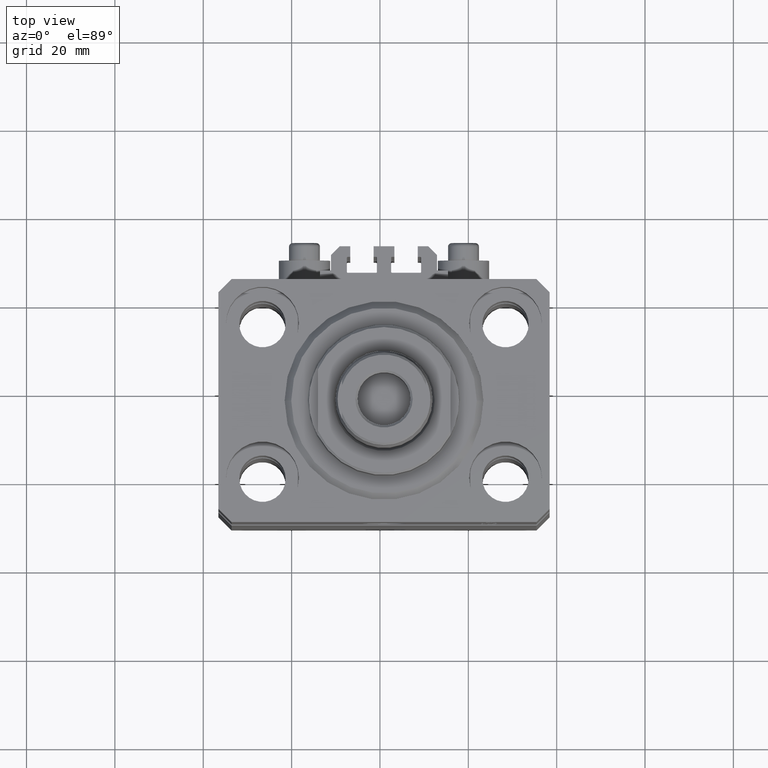
[diagram: clean part render]
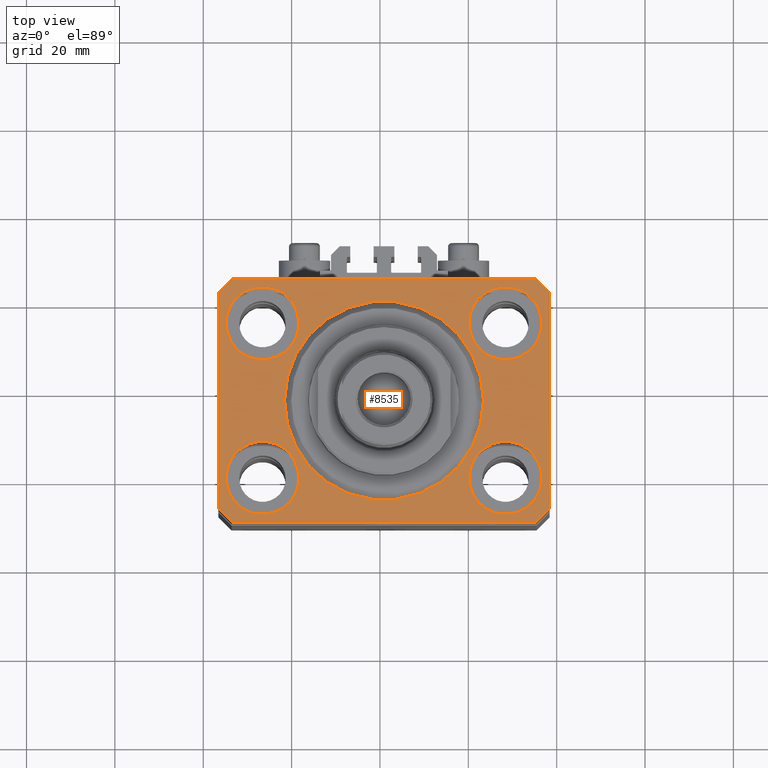
[diagram: same view with one face highlighted and labeled with its STEP entity id]
A machine part, top view. The second image highlights one B-rep face of the part: STEP entity #8535.
In plain terms, the highlighted planar face has unit normal (0, 0, 1).
Its self-contained STEP definition (entity closure, byte-faithful):
#645 = CARTESIAN_POINT ( 'NONE',  ( 27.50000000000000355, -17.50000000000000000, 0.000000000000000000 ) ) ;
#1339 = VECTOR ( 'NONE', #26666, 1000.000000000000000 ) ;
#2105 = CARTESIAN_POINT ( 'NONE',  ( -37.49999999999999289, 24.50000000000000000, 0.000000000000000000 ) ) ;
#2543 = CIRCLE ( 'NONE', #25241, 22.50000000000000355 ) ;
#2663 = DIRECTION ( 'NONE',  ( -0.7071067811865356934, 0.7071067811865594521, 0.000000000000000000 ) ) ;
#2834 = VERTEX_POINT ( 'NONE', #7367 ) ;
#2890 = EDGE_LOOP ( 'NONE', ( #31663, #12258 ) ) ;
#3394 = CARTESIAN_POINT ( 'NONE',  ( 34.50000000000056843, 27.50000000000000000, 0.000000000000000000 ) ) ;
#3532 = AXIS2_PLACEMENT_3D ( 'NONE', #31490, #13016, #17038 ) ;
#3968 = DIRECTION ( 'NONE',  ( 0.000000000000000000, 0.000000000000000000, 1.000000000000000000 ) ) ;
#4476 = FACE_BOUND ( 'NONE', #32569, .T. ) ;
#4528 = DIRECTION ( 'NONE',  ( 1.000000000000000000, 0.000000000000000000, 0.000000000000000000 ) ) ;
#4838 = LINE ( 'NONE', #33971, #34593 ) ;
#4928 = AXIS2_PLACEMENT_3D ( 'NONE', #9342, #30891, #42220 ) ;
#5567 = VECTOR ( 'NONE', #44948, 1000.000000000000000 ) ;
#5741 = CARTESIAN_POINT ( 'NONE',  ( -22.50000000000000355, 2.755455298081545172E-15, 0.000000000000000000 ) ) ;
#5803 = VECTOR ( 'NONE', #27710, 1000.000000000000000 ) ;
#6016 = CARTESIAN_POINT ( 'NONE',  ( 27.50000000000000355, -17.50000000000000000, 0.000000000000000000 ) ) ;
#6376 = ORIENTED_EDGE ( 'NONE', *, *, #39005, .F. ) ;
#6401 = LINE ( 'NONE', #28200, #7277 ) ;
#6676 = AXIS2_PLACEMENT_3D ( 'NONE', #32971, #22557, #25654 ) ;
#7277 = VECTOR ( 'NONE', #17519, 1000.000000000000000 ) ;
#7367 = CARTESIAN_POINT ( 'NONE',  ( 37.50000000000051870, 24.49999999999995381, 0.000000000000000000 ) ) ;
#7586 = ORIENTED_EDGE ( 'NONE', *, *, #41017, .T. ) ;
#7593 = VERTEX_POINT ( 'NONE', #25806 ) ;
#8033 = DIRECTION ( 'NONE',  ( 0.000000000000000000, 0.000000000000000000, 1.000000000000000000 ) ) ;
#8268 = VERTEX_POINT ( 'NONE', #16833 ) ;
#8368 = CARTESIAN_POINT ( 'NONE',  ( 19.25000000000000000, 17.50000000000001066, 0.000000000000000000 ) ) ;
#8535 = ADVANCED_FACE ( 'NONE', ( #22952, #12280, #4476, #16072, #26511, #40459 ), #26047, .T. ) ;
#8805 = CIRCLE ( 'NONE', #3532, 8.250000000000000000 ) ;
#8994 = CARTESIAN_POINT ( 'NONE',  ( 37.49999999999999289, -24.50000000000000000, 0.000000000000000000 ) ) ;
#9342 = CARTESIAN_POINT ( 'NONE',  ( -27.50000000000000355, -17.50000000000000000, 0.000000000000000000 ) ) ;
#9685 = ORIENTED_EDGE ( 'NONE', *, *, #23191, .T. ) ;
#10780 = ORIENTED_EDGE ( 'NONE', *, *, #20678, .T. ) ;
#10802 = CARTESIAN_POINT ( 'NONE',  ( 34.49999999999999289, -27.49999999999999645, 0.000000000000000000 ) ) ;
#11431 = CARTESIAN_POINT ( 'NONE',  ( -37.49999999999999289, -24.50000000000000000, 0.000000000000000000 ) ) ;
#11759 = AXIS2_PLACEMENT_3D ( 'NONE', #6016, #24729, #38457 ) ;
#12165 = EDGE_CURVE ( 'NONE', #30287, #31883, #35102, .T. ) ;
#12200 = CARTESIAN_POINT ( 'NONE',  ( -34.49999999999998579, -27.49999999999999645, 0.000000000000000000 ) ) ;
#12258 = ORIENTED_EDGE ( 'NONE', *, *, #44285, .F. ) ;
#12280 = FACE_BOUND ( 'NONE', #2890, .T. ) ;
#12681 = LINE ( 'NONE', #12200, #1339 ) ;
#12688 = AXIS2_PLACEMENT_3D ( 'NONE', #29886, #26106, #4528 ) ;
#12951 = VERTEX_POINT ( 'NONE', #8368 ) ;
#13016 = DIRECTION ( 'NONE',  ( 0.000000000000000000, 0.000000000000000000, 1.000000000000000000 ) ) ;
#13244 = EDGE_CURVE ( 'NONE', #44962, #31657, #6401, .T. ) ;
#13847 = ORIENTED_EDGE ( 'NONE', *, *, #13244, .T. ) ;
#14443 = AXIS2_PLACEMENT_3D ( 'NONE', #15707, #26383, #29935 ) ;
#14683 = EDGE_CURVE ( 'NONE', #42990, #34375, #26902, .T. ) ;
#14898 = CARTESIAN_POINT ( 'NONE',  ( -19.25000000000000355, 17.50000000000000000, 0.000000000000000000 ) ) ;
#15473 = ORIENTED_EDGE ( 'NONE', *, *, #43793, .F. ) ;
#15571 = ORIENTED_EDGE ( 'NONE', *, *, #23085, .F. ) ;
#15618 = ORIENTED_EDGE ( 'NONE', *, *, #42400, .F. ) ;
#15670 = ORIENTED_EDGE ( 'NONE', *, *, #39600, .T. ) ;
#15707 = CARTESIAN_POINT ( 'NONE',  ( 27.49999999999999645, 17.50000000000001066, 0.000000000000000000 ) ) ;
#15870 = VERTEX_POINT ( 'NONE', #5741 ) ;
#16072 = FACE_BOUND ( 'NONE', #39821, .T. ) ;
#16215 = DIRECTION ( 'NONE',  ( 0.7071067811865483499, -0.7071067811865466846, 0.000000000000000000 ) ) ;
#16833 = CARTESIAN_POINT ( 'NONE',  ( -37.49999999999999289, 24.50000000000000000, 0.000000000000000000 ) ) ;
#16872 = CARTESIAN_POINT ( 'NONE',  ( 0.000000000000000000, 0.000000000000000000, 0.000000000000000000 ) ) ;
#16921 = DIRECTION ( 'NONE',  ( -0.7071067811865471286, -0.7071067811865479058, 0.000000000000000000 ) ) ;
#17038 = DIRECTION ( 'NONE',  ( 1.000000000000000000, 0.000000000000000000, 0.000000000000000000 ) ) ;
#17519 = DIRECTION ( 'NONE',  ( -1.000000000000000000, 0.000000000000000000, 0.000000000000000000 ) ) ;
#18243 = ORIENTED_EDGE ( 'NONE', *, *, #28902, .T. ) ;
#18599 = CARTESIAN_POINT ( 'NONE',  ( 22.50000000000000355, 0.000000000000000000, 0.000000000000000000 ) ) ;
#20119 = CARTESIAN_POINT ( 'NONE',  ( 37.49999999999999289, -24.50000000000000000, 0.000000000000000000 ) ) ;
#20678 = EDGE_CURVE ( 'NONE', #32918, #30287, #12681, .T. ) ;
#21252 = VECTOR ( 'NONE', #2663, 1000.000000000000114 ) ;
#21551 = VERTEX_POINT ( 'NONE', #14898 ) ;
#21572 = ORIENTED_EDGE ( 'NONE', *, *, #12165, .T. ) ;
#21666 = ORIENTED_EDGE ( 'NONE', *, *, #14683, .F. ) ;
#22415 = CARTESIAN_POINT ( 'NONE',  ( -19.25000000000000355, -17.50000000000000000, 0.000000000000000000 ) ) ;
#22490 = CARTESIAN_POINT ( 'NONE',  ( -35.75000000000000711, -17.50000000000000000, 0.000000000000000000 ) ) ;
#22557 = DIRECTION ( 'NONE',  ( 0.000000000000000000, 0.000000000000000000, 1.000000000000000000 ) ) ;
#22952 = FACE_BOUND ( 'NONE', #30431, .T. ) ;
#23034 = DIRECTION ( 'NONE',  ( 1.000000000000000000, 0.000000000000000000, 0.000000000000000000 ) ) ;
#23085 = EDGE_CURVE ( 'NONE', #12951, #7593, #34867, .T. ) ;
#23191 = EDGE_CURVE ( 'NONE', #2834, #44962, #38202, .T. ) ;
#23277 = EDGE_LOOP ( 'NONE', ( #13847, #7586, #18243, #36669, #10780, #21572, #15670, #9685 ) ) ;
#24729 = DIRECTION ( 'NONE',  ( 0.000000000000000000, 0.000000000000000000, 1.000000000000000000 ) ) ;
#25138 = CARTESIAN_POINT ( 'NONE',  ( -34.49999999999998579, -27.49999999999999645, 0.000000000000000000 ) ) ;
#25241 = AXIS2_PLACEMENT_3D ( 'NONE', #40772, #44549, #23034 ) ;
#25520 = CIRCLE ( 'NONE', #37596, 8.250000000000000000 ) ;
#25654 = DIRECTION ( 'NONE',  ( 1.000000000000000000, 0.000000000000000000, 0.000000000000000000 ) ) ;
#25806 = CARTESIAN_POINT ( 'NONE',  ( 35.74999999999999289, 17.50000000000001066, 0.000000000000000000 ) ) ;
#25962 = EDGE_CURVE ( 'NONE', #21551, #46476, #29676, .T. ) ;
#26047 = PLANE ( 'NONE',  #27564 ) ;
#26106 = DIRECTION ( 'NONE',  ( 0.000000000000000000, 0.000000000000000000, 1.000000000000000000 ) ) ;
#26249 = CARTESIAN_POINT ( 'NONE',  ( -35.75000000000000711, 17.50000000000000000, 0.000000000000000000 ) ) ;
#26383 = DIRECTION ( 'NONE',  ( 0.000000000000000000, 0.000000000000000000, 1.000000000000000000 ) ) ;
#26511 = FACE_BOUND ( 'NONE', #32285, .T. ) ;
#26666 = DIRECTION ( 'NONE',  ( 1.000000000000000000, 0.000000000000000000, 0.000000000000000000 ) ) ;
#26902 = CIRCLE ( 'NONE', #4928, 8.250000000000000000 ) ;
#26930 = VECTOR ( 'NONE', #46674, 1000.000000000000114 ) ;
#27564 = AXIS2_PLACEMENT_3D ( 'NONE', #40927, #8033, #43996 ) ;
#27664 = CARTESIAN_POINT ( 'NONE',  ( -27.50000000000000355, 17.50000000000000000, 0.000000000000000000 ) ) ;
#27710 = DIRECTION ( 'NONE',  ( 1.076236605503979380E-14, 1.000000000000000000, 0.000000000000000000 ) ) ;
#28065 = LINE ( 'NONE', #46241, #33764 ) ;
#28200 = CARTESIAN_POINT ( 'NONE',  ( 34.50000000000056843, 27.50000000000000000, 0.000000000000000000 ) ) ;
#28598 = CIRCLE ( 'NONE', #12688, 8.249999999999992895 ) ;
#28902 = EDGE_CURVE ( 'NONE', #8268, #44979, #31000, .T. ) ;
#29676 = CIRCLE ( 'NONE', #43233, 8.250000000000000000 ) ;
#29886 = CARTESIAN_POINT ( 'NONE',  ( 27.49999999999999645, 17.50000000000001066, 0.000000000000000000 ) ) ;
#29935 = DIRECTION ( 'NONE',  ( 1.000000000000000000, 0.000000000000000000, 0.000000000000000000 ) ) ;
#29940 = CIRCLE ( 'NONE', #11759, 8.250000000000000000 ) ;
#30287 = VERTEX_POINT ( 'NONE', #10802 ) ;
#30431 = EDGE_LOOP ( 'NONE', ( #15473, #21666 ) ) ;
#30891 = DIRECTION ( 'NONE',  ( 0.000000000000000000, 0.000000000000000000, 1.000000000000000000 ) ) ;
#31000 = LINE ( 'NONE', #2105, #5567 ) ;
#31490 = CARTESIAN_POINT ( 'NONE',  ( -27.50000000000000355, 17.50000000000000000, 0.000000000000000000 ) ) ;
#31657 = VERTEX_POINT ( 'NONE', #41751 ) ;
#31663 = ORIENTED_EDGE ( 'NONE', *, *, #37392, .F. ) ;
#31883 = VERTEX_POINT ( 'NONE', #8994 ) ;
#32254 = CARTESIAN_POINT ( 'NONE',  ( 34.49999999999999289, -27.49999999999999645, 0.000000000000000000 ) ) ;
#32285 = EDGE_LOOP ( 'NONE', ( #15618, #38310 ) ) ;
#32368 = AXIS2_PLACEMENT_3D ( 'NONE', #16872, #38654, #42650 ) ;
#32569 = EDGE_LOOP ( 'NONE', ( #46389, #15571 ) ) ;
#32714 = EDGE_CURVE ( 'NONE', #15870, #40135, #2543, .T. ) ;
#32862 = DIRECTION ( 'NONE',  ( 1.000000000000000000, 0.000000000000000000, 0.000000000000000000 ) ) ;
#32918 = VERTEX_POINT ( 'NONE', #25138 ) ;
#32971 = CARTESIAN_POINT ( 'NONE',  ( -27.50000000000000355, -17.50000000000000000, 0.000000000000000000 ) ) ;
#33764 = VECTOR ( 'NONE', #16921, 1000.000000000000000 ) ;
#33780 = CARTESIAN_POINT ( 'NONE',  ( 19.25000000000000000, -17.50000000000000000, 0.000000000000000000 ) ) ;
#33971 = CARTESIAN_POINT ( 'NONE',  ( -37.49999999999999289, -24.50000000000000000, 0.000000000000000000 ) ) ;
#34375 = VERTEX_POINT ( 'NONE', #22415 ) ;
#34382 = CARTESIAN_POINT ( 'NONE',  ( 35.75000000000000711, -17.50000000000000000, 0.000000000000000000 ) ) ;
#34593 = VECTOR ( 'NONE', #16215, 1000.000000000000000 ) ;
#34867 = CIRCLE ( 'NONE', #14443, 8.249999999999992895 ) ;
#35102 = LINE ( 'NONE', #32254, #26930 ) ;
#35106 = CARTESIAN_POINT ( 'NONE',  ( 37.50000000000051870, 24.49999999999995381, 0.000000000000000000 ) ) ;
#36669 = ORIENTED_EDGE ( 'NONE', *, *, #44799, .T. ) ;
#36698 = ORIENTED_EDGE ( 'NONE', *, *, #25962, .F. ) ;
#36910 = CIRCLE ( 'NONE', #6676, 8.250000000000000000 ) ;
#37392 = EDGE_CURVE ( 'NONE', #37638, #44452, #29940, .T. ) ;
#37596 = AXIS2_PLACEMENT_3D ( 'NONE', #645, #3968, #32862 ) ;
#37638 = VERTEX_POINT ( 'NONE', #34382 ) ;
#38202 = LINE ( 'NONE', #35106, #21252 ) ;
#38310 = ORIENTED_EDGE ( 'NONE', *, *, #32714, .F. ) ;
#38457 = DIRECTION ( 'NONE',  ( 1.000000000000000000, 0.000000000000000000, 0.000000000000000000 ) ) ;
#38654 = DIRECTION ( 'NONE',  ( 0.000000000000000000, 0.000000000000000000, 1.000000000000000000 ) ) ;
#38752 = DIRECTION ( 'NONE',  ( 1.000000000000000000, 0.000000000000000000, 0.000000000000000000 ) ) ;
#39005 = EDGE_CURVE ( 'NONE', #46476, #21551, #8805, .T. ) ;
#39600 = EDGE_CURVE ( 'NONE', #31883, #2834, #45421, .T. ) ;
#39821 = EDGE_LOOP ( 'NONE', ( #36698, #6376 ) ) ;
#40135 = VERTEX_POINT ( 'NONE', #18599 ) ;
#40459 = FACE_OUTER_BOUND ( 'NONE', #23277, .T. ) ;
#40772 = CARTESIAN_POINT ( 'NONE',  ( 0.000000000000000000, 0.000000000000000000, 0.000000000000000000 ) ) ;
#40927 = CARTESIAN_POINT ( 'NONE',  ( 0.000000000000000000, 0.000000000000000000, 0.000000000000000000 ) ) ;
#41017 = EDGE_CURVE ( 'NONE', #31657, #8268, #28065, .T. ) ;
#41751 = CARTESIAN_POINT ( 'NONE',  ( -34.49999999999999289, 27.50000000000000000, 0.000000000000000000 ) ) ;
#42058 = DIRECTION ( 'NONE',  ( 0.000000000000000000, 0.000000000000000000, 1.000000000000000000 ) ) ;
#42220 = DIRECTION ( 'NONE',  ( 1.000000000000000000, 0.000000000000000000, 0.000000000000000000 ) ) ;
#42400 = EDGE_CURVE ( 'NONE', #40135, #15870, #42925, .T. ) ;
#42650 = DIRECTION ( 'NONE',  ( 1.000000000000000000, 0.000000000000000000, 0.000000000000000000 ) ) ;
#42674 = EDGE_CURVE ( 'NONE', #7593, #12951, #28598, .T. ) ;
#42925 = CIRCLE ( 'NONE', #32368, 22.50000000000000355 ) ;
#42990 = VERTEX_POINT ( 'NONE', #22490 ) ;
#43233 = AXIS2_PLACEMENT_3D ( 'NONE', #27664, #42058, #38752 ) ;
#43793 = EDGE_CURVE ( 'NONE', #34375, #42990, #36910, .T. ) ;
#43996 = DIRECTION ( 'NONE',  ( 1.000000000000000000, 0.000000000000000000, -0.000000000000000000 ) ) ;
#44285 = EDGE_CURVE ( 'NONE', #44452, #37638, #25520, .T. ) ;
#44452 = VERTEX_POINT ( 'NONE', #33780 ) ;
#44549 = DIRECTION ( 'NONE',  ( 0.000000000000000000, 0.000000000000000000, 1.000000000000000000 ) ) ;
#44799 = EDGE_CURVE ( 'NONE', #44979, #32918, #4838, .T. ) ;
#44948 = DIRECTION ( 'NONE',  ( 0.000000000000000000, -1.000000000000000000, 0.000000000000000000 ) ) ;
#44962 = VERTEX_POINT ( 'NONE', #3394 ) ;
#44979 = VERTEX_POINT ( 'NONE', #11431 ) ;
#45421 = LINE ( 'NONE', #20119, #5803 ) ;
#46241 = CARTESIAN_POINT ( 'NONE',  ( -34.49999999999999289, 27.50000000000000000, 0.000000000000000000 ) ) ;
#46389 = ORIENTED_EDGE ( 'NONE', *, *, #42674, .F. ) ;
#46476 = VERTEX_POINT ( 'NONE', #26249 ) ;
#46674 = DIRECTION ( 'NONE',  ( 0.7071067811865474617, 0.7071067811865474617, 0.000000000000000000 ) ) ;